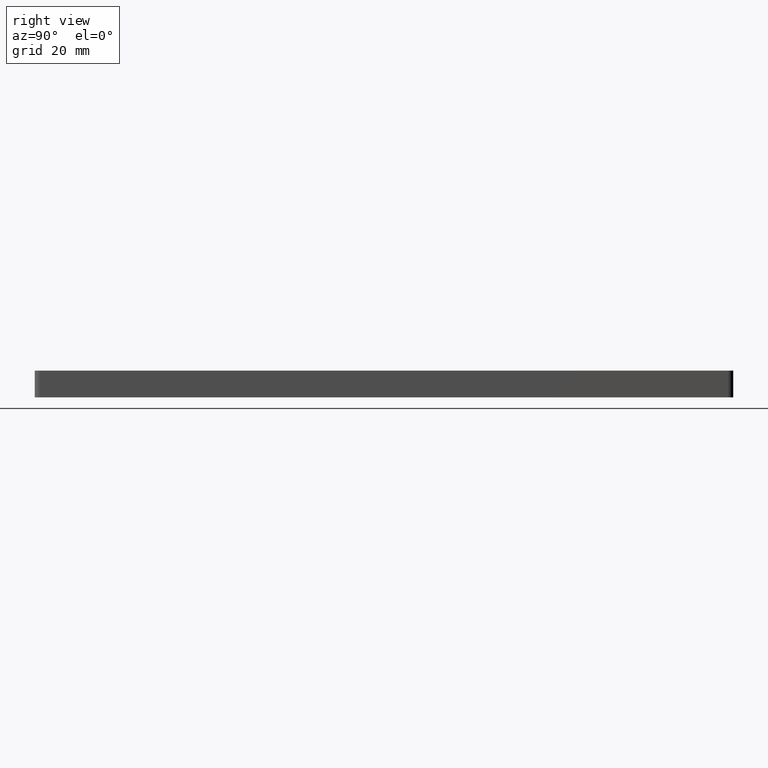
[diagram: clean part render]
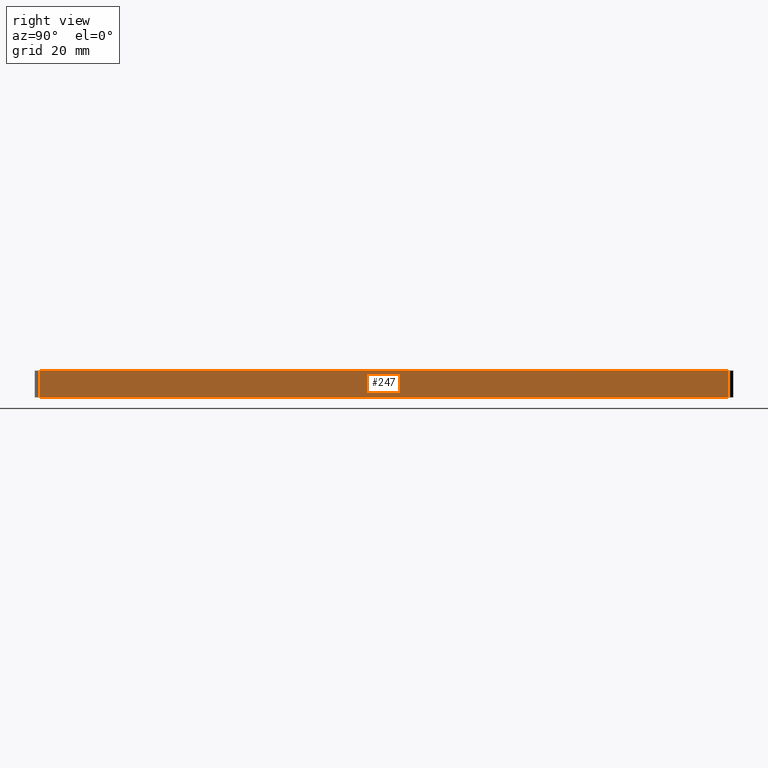
[diagram: same view with one face highlighted and labeled with its STEP entity id]
A machine part, right view. The second image highlights one B-rep face of the part: STEP entity #247.
In plain terms, the highlighted planar face has unit normal (1, 0, 0).
Its self-contained STEP definition (entity closure, byte-faithful):
#208=CARTESIAN_POINT('',(20.000000000000014,-5.399999999999999,5.250000000000000));
#209=DIRECTION('',(1.0,0.0,0.0));
#210=DIRECTION('',(0.0,0.0,-1.0));
#211=AXIS2_PLACEMENT_3D('',#208,#209,#210);
#212=PLANE('',#211);
#213=CARTESIAN_POINT('',(20.000000000000014,1.000000000000002,5.0));
#214=VERTEX_POINT('',#213);
#215=CARTESIAN_POINT('',(20.000000000000014,129.0,5.0));
#216=VERTEX_POINT('',#215);
#217=CARTESIAN_POINT('',(20.000000000000014,1.000000000000002,5.0));
#218=DIRECTION('',(0.0,1.0,0.0));
#219=VECTOR('',#218,128.0);
#220=LINE('',#217,#219);
#221=EDGE_CURVE('',#214,#216,#220,.T.);
#222=ORIENTED_EDGE('',*,*,#221,.F.);
#223=CARTESIAN_POINT('',(20.000000000000014,1.000000000000002,0.0));
#224=VERTEX_POINT('',#223);
#225=CARTESIAN_POINT('',(20.000000000000014,1.000000000000002,5.0));
#226=DIRECTION('',(0.0,0.0,-1.0));
#227=VECTOR('',#226,5.0);
#228=LINE('',#225,#227);
#229=EDGE_CURVE('',#214,#224,#228,.T.);
#230=ORIENTED_EDGE('',*,*,#229,.T.);
#231=CARTESIAN_POINT('',(20.000000000000014,129.0,0.0));
#232=VERTEX_POINT('',#231);
#233=CARTESIAN_POINT('',(20.000000000000014,1.000000000000002,0.0));
#234=DIRECTION('',(0.0,1.0,0.0));
#235=VECTOR('',#234,128.0);
#236=LINE('',#233,#235);
#237=EDGE_CURVE('',#224,#232,#236,.T.);
#238=ORIENTED_EDGE('',*,*,#237,.T.);
#239=CARTESIAN_POINT('',(20.000000000000014,129.0,0.0));
#240=DIRECTION('',(0.0,0.0,1.0));
#241=VECTOR('',#240,5.0);
#242=LINE('',#239,#241);
#243=EDGE_CURVE('',#232,#216,#242,.T.);
#244=ORIENTED_EDGE('',*,*,#243,.T.);
#245=EDGE_LOOP('',(#222,#230,#238,#244));
#246=FACE_OUTER_BOUND('',#245,.T.);
#247=ADVANCED_FACE('',(#246),#212,.T.);